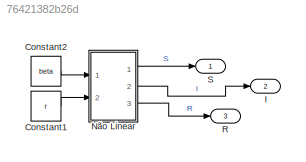
MODEL slx_76421382b26d
KIND model
CONFIG AbsTol = auto
CONFIG EnableMultiTasking = off
CONFIG FixedStep = auto
CONFIG MaxStep = 0.01
CONFIG MinStep = auto
CONFIG RelTol = 1e-3
CONFIG SampleTimeConstraint = Unconstrained
CONFIG Solver = VariableStepAuto
CONFIG SolverName = VariableStepAuto
CONFIG StartTime = 0.0
CONFIG StopTime = 100
BLOCK [Constant] Constant1
  Value = r
BLOCK [Constant] Constant2
  Value = beta
BLOCK [Outport] I
  Port = 2
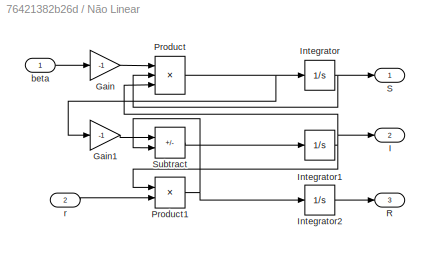
BLOCK [SubSystem] Não Linear
  Ports = [2, 3]
  RequestExecContextInheritance = off
BLOCK [Gain] Não Linear/Gain
  Gain = -1
BLOCK [Gain] Não Linear/Gain1
  Gain = -1
BLOCK [Outport] Não Linear/I
  Port = 2
BLOCK [Integrator] Não Linear/Integrator
  InitialCondition = S0
  Ports = [1, 1]
BLOCK [Integrator] Não Linear/Integrator1
  InitialCondition = I0
  Ports = [1, 1]
BLOCK [Integrator] Não Linear/Integrator2
  InitialCondition = R0
  Ports = [1, 1]
BLOCK [Product] Não Linear/Product
  Inputs = 3
  Ports = [3, 1]
BLOCK [Product] Não Linear/Product1
  Ports = [2, 1]
BLOCK [Outport] Não Linear/R
  Port = 3
BLOCK [Outport] Não Linear/S
BLOCK [Sum] Não Linear/Subtract
  IconShape = rectangular
  Inputs = +-
  Ports = [2, 1]
BLOCK [Inport] Não Linear/beta
BLOCK [Inport] Não Linear/r
  Port = 2
BLOCK [Outport] R
  Port = 3
BLOCK [Outport] S
LINE Constant1:1 -> Não Linear:2
LINE Constant2:1 -> Não Linear:1
LINE Não Linear/Gain1:1 -> Não Linear/Subtract:1
LINE Não Linear/Gain:1 -> Não Linear/Product:1
NET Não Linear/Integrator1:1 -> Não Linear/I:1, Não Linear/Product1:1, Não Linear/Product:3
LINE Não Linear/Integrator2:1 -> Não Linear/R:1
NET Não Linear/Integrator:1 -> Não Linear/Product:2, Não Linear/S:1
NET Não Linear/Product1:1 -> Não Linear/Integrator2:1, Não Linear/Subtract:2
NET Não Linear/Product:1 -> Não Linear/Gain1:1, Não Linear/Integrator:1
LINE Não Linear/Subtract:1 -> Não Linear/Integrator1:1
LINE Não Linear/beta:1 -> Não Linear/Gain:1
LINE Não Linear/r:1 -> Não Linear/Product1:2
LINE Não Linear:1 -> S:1
LINE Não Linear:2 -> I:1
LINE Não Linear:3 -> R:1
note: NET lines group one-source signal fan-out (src -> all destinations, sorted); 1:1 wires keep LINE
